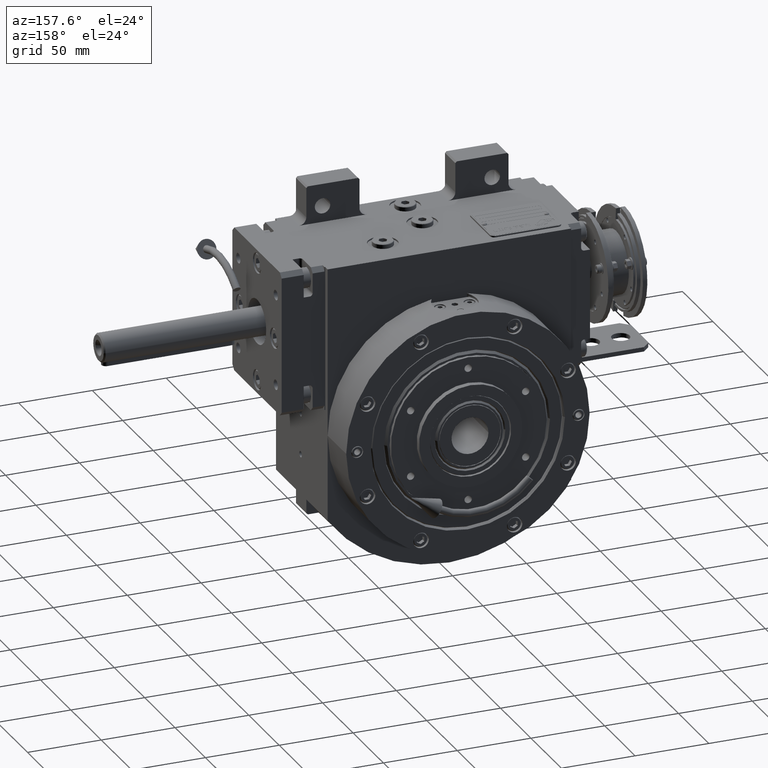
[diagram: clean part render]
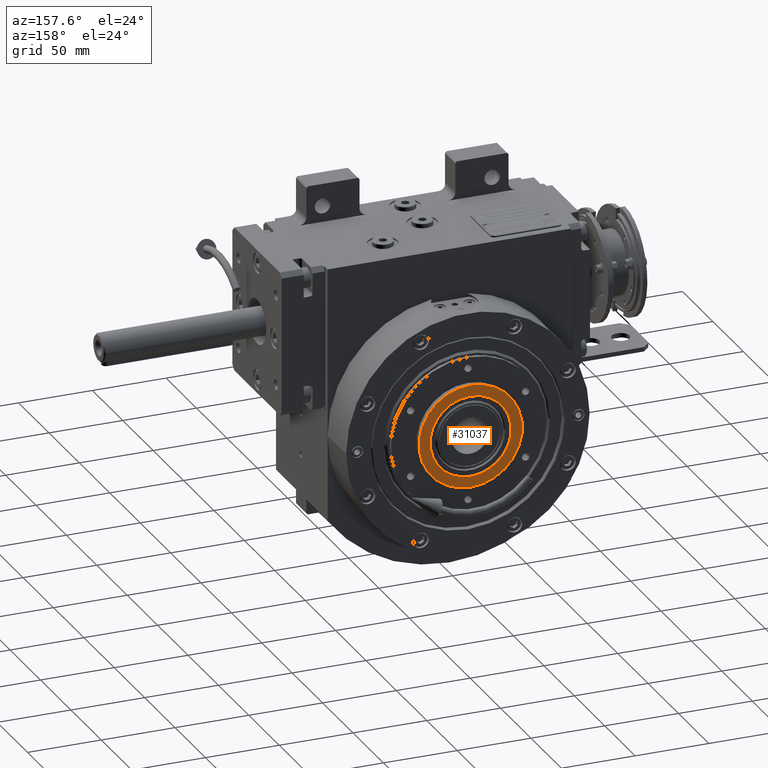
[diagram: same view with one face highlighted and labeled with its STEP entity id]
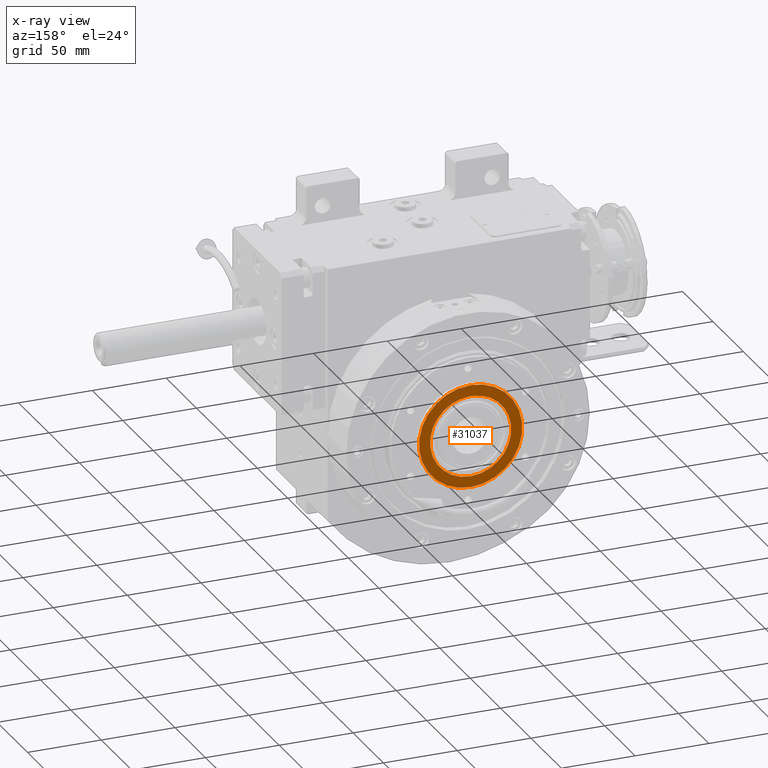
[diagram: x-ray of the same camera — body ghosted, the highlighted face saturated]
A machine part, auxiliary view. The second image highlights one B-rep face of the part: STEP entity #31037.
The next image is the same camera in x-ray: the body ghosted, the highlighted face saturated — about 0% of this face is hidden behind the body in this view.
In plain terms, the highlighted planar face has unit normal (0, -1, -0).
Its self-contained STEP definition (entity closure, byte-faithful):
#63 = EDGE_CURVE ( 'NONE', #54253, #58500, #2897, .T. ) ;
#2584 = CARTESIAN_POINT ( 'NONE',  ( 1.776356839400252042E-14, 93.00000000000000000, 3.552713678800504085E-15 ) ) ;
#2897 = CIRCLE ( 'NONE', #20933, 27.50000000000000000 ) ;
#2917 = VERTEX_POINT ( 'NONE', #44604 ) ;
#2923 = AXIS2_PLACEMENT_3D ( 'NONE', #2584, #9545, #29476 ) ;
#4135 = AXIS2_PLACEMENT_3D ( 'NONE', #45390, #84405, #59236 ) ;
#4510 = EDGE_CURVE ( 'NONE', #2917, #49076, #19375, .T. ) ;
#6858 = ORIENTED_EDGE ( 'NONE', *, *, #79577, .T. ) ;
#9545 = DIRECTION ( 'NONE',  ( 0.000000000000000000, 1.000000000000000000, -1.685188701288034302E-33 ) ) ;
#13162 = ORIENTED_EDGE ( 'NONE', *, *, #4510, .F. ) ;
#15685 = AXIS2_PLACEMENT_3D ( 'NONE', #34931, #35813, #61405 ) ;
#15851 = FACE_BOUND ( 'NONE', #24142, .T. ) ;
#19375 = CIRCLE ( 'NONE', #4135, 35.00000000000000000 ) ;
#20933 = AXIS2_PLACEMENT_3D ( 'NONE', #65263, #25312, #31852 ) ;
#22340 = FACE_OUTER_BOUND ( 'NONE', #74721, .T. ) ;
#24142 = EDGE_LOOP ( 'NONE', ( #44371, #6858 ) ) ;
#25312 = DIRECTION ( 'NONE',  ( 0.000000000000000000, -1.000000000000000000, 1.685188701288034302E-33 ) ) ;
#26621 = CARTESIAN_POINT ( 'NONE',  ( -27.50000000000000000, 93.00000000000000000, 1.122592899218476522E-15 ) ) ;
#29476 = DIRECTION ( 'NONE',  ( 1.000000000000000000, 0.000000000000000000, -1.015061051085853925E-16 ) ) ;
#31037 = ADVANCED_FACE ( 'NONE', ( #15851, #22340 ), #74862, .F. ) ;
#31852 = DIRECTION ( 'NONE',  ( -1.000000000000000000, 0.000000000000000000, -6.459479416001031261E-17 ) ) ;
#33387 = CARTESIAN_POINT ( 'NONE',  ( -35.00000000000000000, 93.00000000000000000, -2.857509198010344795E-15 ) ) ;
#34931 = CARTESIAN_POINT ( 'NONE',  ( 1.709243400810326127E-14, 93.00000000000000000, 0.000000000000000000 ) ) ;
#35813 = DIRECTION ( 'NONE',  ( -1.836909530733564901E-16, -1.000000000000000000, -5.954631203350559886E-33 ) ) ;
#44371 = ORIENTED_EDGE ( 'NONE', *, *, #63, .T. ) ;
#44514 = CIRCLE ( 'NONE', #2923, 35.00000000000000000 ) ;
#44604 = CARTESIAN_POINT ( 'NONE',  ( 35.00000000000000000, 93.00000000000000000, 1.428754599005369613E-15 ) ) ;
#45390 = CARTESIAN_POINT ( 'NONE',  ( 1.776356839400252042E-14, 93.00000000000000000, -3.552713678800504085E-15 ) ) ;
#49076 = VERTEX_POINT ( 'NONE', #33387 ) ;
#53425 = CIRCLE ( 'NONE', #58907, 27.50000000000000000 ) ;
#53472 = DIRECTION ( 'NONE',  ( 1.000000000000000000, 0.000000000000000000, 6.459479416001031261E-17 ) ) ;
#54253 = VERTEX_POINT ( 'NONE', #26621 ) ;
#58500 = VERTEX_POINT ( 'NONE', #80223 ) ;
#58907 = AXIS2_PLACEMENT_3D ( 'NONE', #65630, #79508, #53472 ) ;
#59236 = DIRECTION ( 'NONE',  ( 1.000000000000000000, 0.000000000000000000, 1.015061051085853925E-16 ) ) ;
#60635 = ORIENTED_EDGE ( 'NONE', *, *, #74073, .T. ) ;
#61405 = DIRECTION ( 'NONE',  ( -1.000000000000000000, 1.836909530733564901E-16, 0.000000000000000000 ) ) ;
#65263 = CARTESIAN_POINT ( 'NONE',  ( 1.598721155460246560E-14, 93.00000000000000000, 1.776356839400252042E-15 ) ) ;
#65630 = CARTESIAN_POINT ( 'NONE',  ( 2.131628207280341894E-14, 93.00000000000000000, -1.776356839392757864E-15 ) ) ;
#74073 = EDGE_CURVE ( 'NONE', #2917, #49076, #44514, .T. ) ;
#74721 = EDGE_LOOP ( 'NONE', ( #13162, #60635 ) ) ;
#74862 = PLANE ( 'NONE',  #15685 ) ;
#79508 = DIRECTION ( 'NONE',  ( 0.000000000000000000, -1.000000000000000000, 1.685188701288034302E-33 ) ) ;
#79577 = EDGE_CURVE ( 'NONE', #58500, #54253, #53425, .T. ) ;
#80223 = CARTESIAN_POINT ( 'NONE',  ( 27.50000000000000000, 93.00000000000000000, 0.000000000000000000 ) ) ;
#84405 = DIRECTION ( 'NONE',  ( 0.000000000000000000, -1.000000000000000000, 1.685188701288034302E-33 ) ) ;